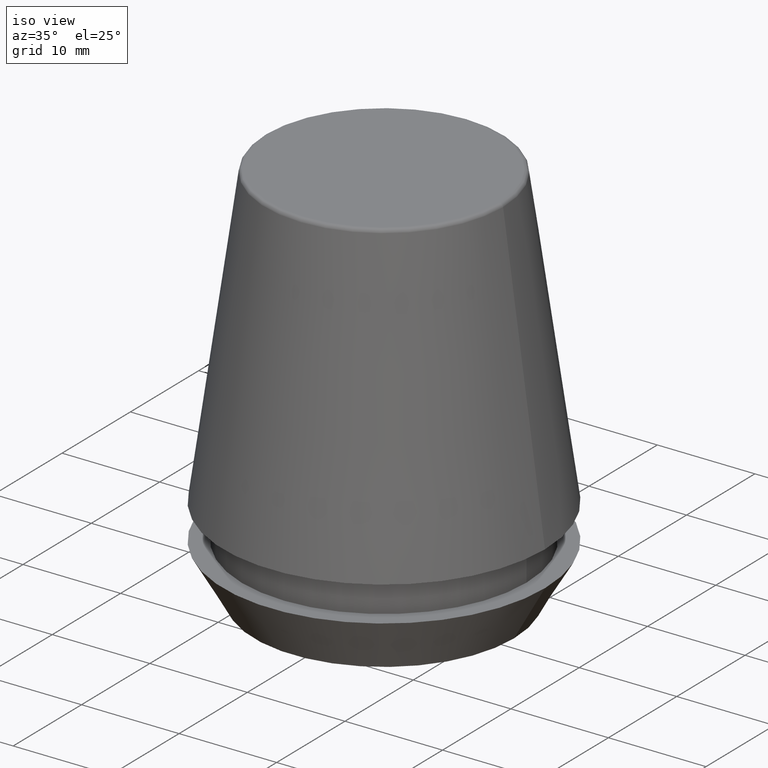
[diagram: clean part render]
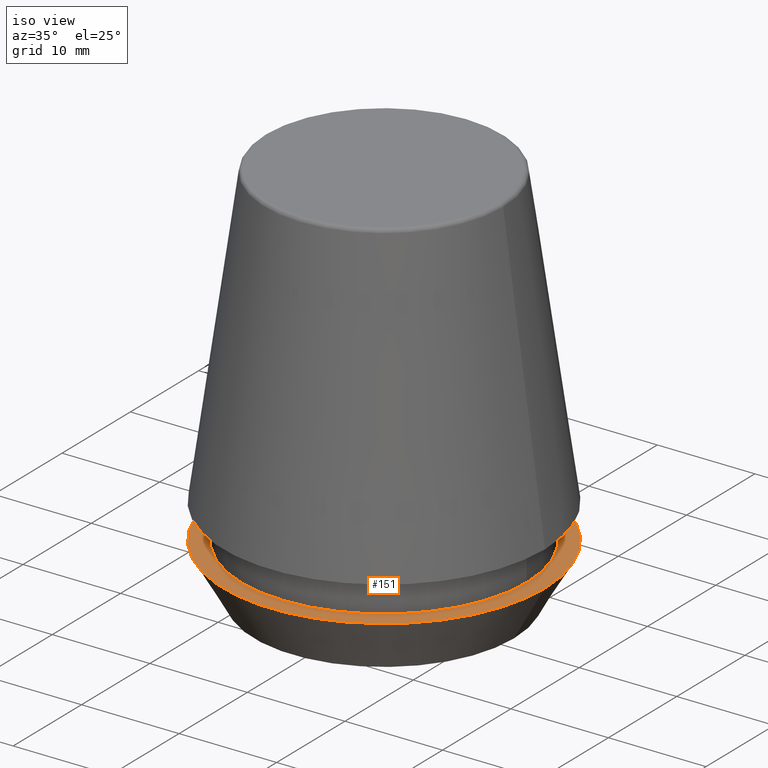
[diagram: same view with one face highlighted and labeled with its STEP entity id]
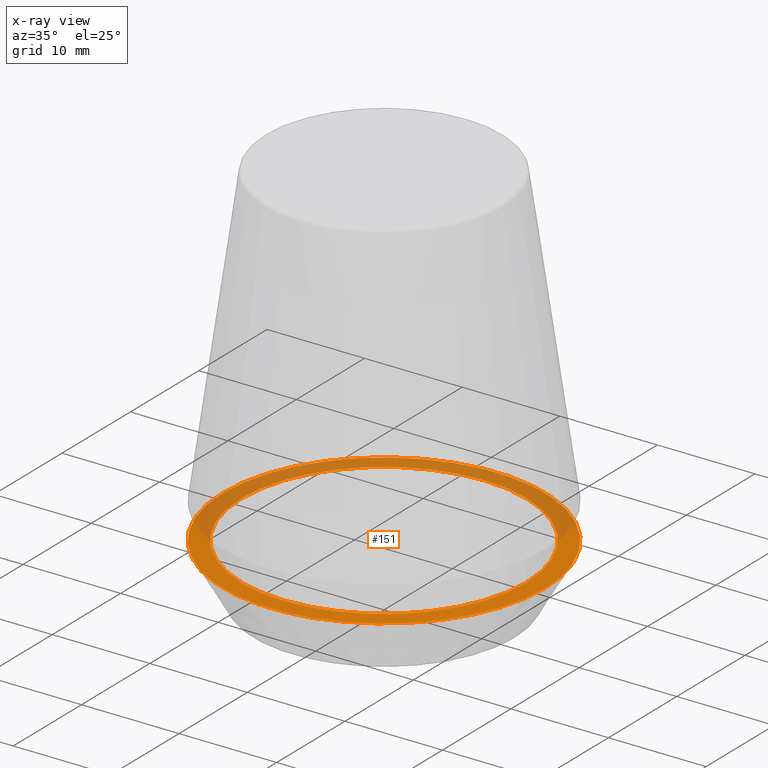
[diagram: x-ray of the same camera — body ghosted, the highlighted face saturated]
A machine part, iso view. The second image highlights one B-rep face of the part: STEP entity #151.
The next image is the same camera in x-ray: the body ghosted, the highlighted face saturated — about 46% of this face is hidden behind the body in this view.
In plain terms, the highlighted planar face has unit normal (0, 0, -1).
Its self-contained STEP definition (entity closure, byte-faithful):
#1 = PLANE ( 'NONE',  #160 ) ;
#6 = CIRCLE ( 'NONE', #246, 16.50000000000000000 ) ;
#8 = VERTEX_POINT ( 'NONE', #136 ) ;
#10 = EDGE_LOOP ( 'NONE', ( #279, #210 ) ) ;
#30 = CARTESIAN_POINT ( 'NONE',  ( -14.60000000000000000, 1.787984326755135800E-015, 5.500000000000005300 ) ) ;
#42 = CARTESIAN_POINT ( 'NONE',  ( 0.0000000000000000000, 0.0000000000000000000, 5.500000000000005300 ) ) ;
#52 = CIRCLE ( 'NONE', #89, 14.60000000000000000 ) ;
#55 = VERTEX_POINT ( 'NONE', #30 ) ;
#86 = VERTEX_POINT ( 'NONE', #214 ) ;
#89 = AXIS2_PLACEMENT_3D ( 'NONE', #42, #314, #276 ) ;
#94 = AXIS2_PLACEMENT_3D ( 'NONE', #243, #266, #326 ) ;
#104 = EDGE_LOOP ( 'NONE', ( #316, #115 ) ) ;
#115 = ORIENTED_EDGE ( 'NONE', *, *, #183, .T. ) ;
#117 = DIRECTION ( 'NONE',  ( -0.0000000000000000000, -0.0000000000000000000, 1.000000000000000000 ) ) ;
#126 = FACE_OUTER_BOUND ( 'NONE', #104, .T. ) ;
#128 = EDGE_CURVE ( 'NONE', #55, #373, #275, .T. ) ;
#134 = CARTESIAN_POINT ( 'NONE',  ( 14.60000000000000000, 0.0000000000000000000, 5.500000000000005300 ) ) ;
#136 = CARTESIAN_POINT ( 'NONE',  ( -16.50000000000000000, 2.020667218593133100E-015, 5.500000000000005300 ) ) ;
#151 = ADVANCED_FACE ( 'NONE', ( #334, #126 ), #1, .F. ) ;
#152 = DIRECTION ( 'NONE',  ( 0.0000000000000000000, 0.0000000000000000000, -1.000000000000000000 ) ) ;
#160 = AXIS2_PLACEMENT_3D ( 'NONE', #248, #152, #211 ) ;
#183 = EDGE_CURVE ( 'NONE', #8, #86, #6, .T. ) ;
#192 = CIRCLE ( 'NONE', #94, 16.50000000000000000 ) ;
#209 = EDGE_CURVE ( 'NONE', #86, #8, #192, .T. ) ;
#210 = ORIENTED_EDGE ( 'NONE', *, *, #128, .F. ) ;
#211 = DIRECTION ( 'NONE',  ( -1.000000000000000000, 0.0000000000000000000, -0.0000000000000000000 ) ) ;
#214 = CARTESIAN_POINT ( 'NONE',  ( 16.50000000000000000, 0.0000000000000000000, 5.500000000000005300 ) ) ;
#225 = AXIS2_PLACEMENT_3D ( 'NONE', #386, #117, #330 ) ;
#226 = EDGE_CURVE ( 'NONE', #373, #55, #52, .T. ) ;
#240 = DIRECTION ( 'NONE',  ( 1.000000000000000000, 0.0000000000000000000, 0.0000000000000000000 ) ) ;
#243 = CARTESIAN_POINT ( 'NONE',  ( 0.0000000000000000000, 0.0000000000000000000, 5.500000000000005300 ) ) ;
#246 = AXIS2_PLACEMENT_3D ( 'NONE', #329, #272, #240 ) ;
#248 = CARTESIAN_POINT ( 'NONE',  ( 0.0000000000000000000, 16.50000000000000000, 5.500000000000002700 ) ) ;
#266 = DIRECTION ( 'NONE',  ( -0.0000000000000000000, -0.0000000000000000000, 1.000000000000000000 ) ) ;
#272 = DIRECTION ( 'NONE',  ( -0.0000000000000000000, -0.0000000000000000000, 1.000000000000000000 ) ) ;
#275 = CIRCLE ( 'NONE', #225, 14.60000000000000000 ) ;
#276 = DIRECTION ( 'NONE',  ( 1.000000000000000000, 0.0000000000000000000, 0.0000000000000000000 ) ) ;
#279 = ORIENTED_EDGE ( 'NONE', *, *, #226, .F. ) ;
#314 = DIRECTION ( 'NONE',  ( -0.0000000000000000000, -0.0000000000000000000, 1.000000000000000000 ) ) ;
#316 = ORIENTED_EDGE ( 'NONE', *, *, #209, .T. ) ;
#326 = DIRECTION ( 'NONE',  ( 1.000000000000000000, 0.0000000000000000000, 0.0000000000000000000 ) ) ;
#329 = CARTESIAN_POINT ( 'NONE',  ( 0.0000000000000000000, 0.0000000000000000000, 5.500000000000005300 ) ) ;
#330 = DIRECTION ( 'NONE',  ( 1.000000000000000000, 0.0000000000000000000, 0.0000000000000000000 ) ) ;
#334 = FACE_BOUND ( 'NONE', #10, .T. ) ;
#373 = VERTEX_POINT ( 'NONE', #134 ) ;
#386 = CARTESIAN_POINT ( 'NONE',  ( 0.0000000000000000000, 0.0000000000000000000, 5.500000000000005300 ) ) ;